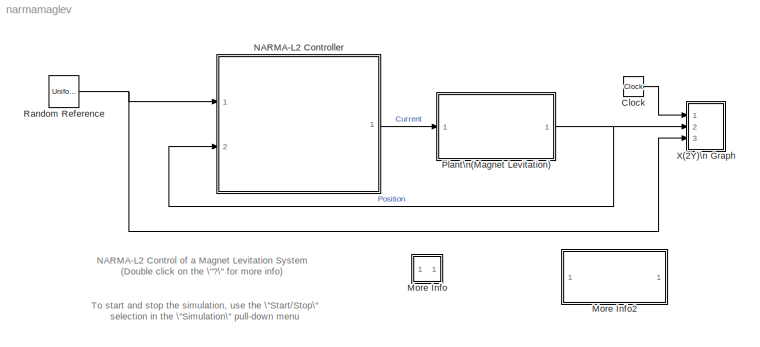
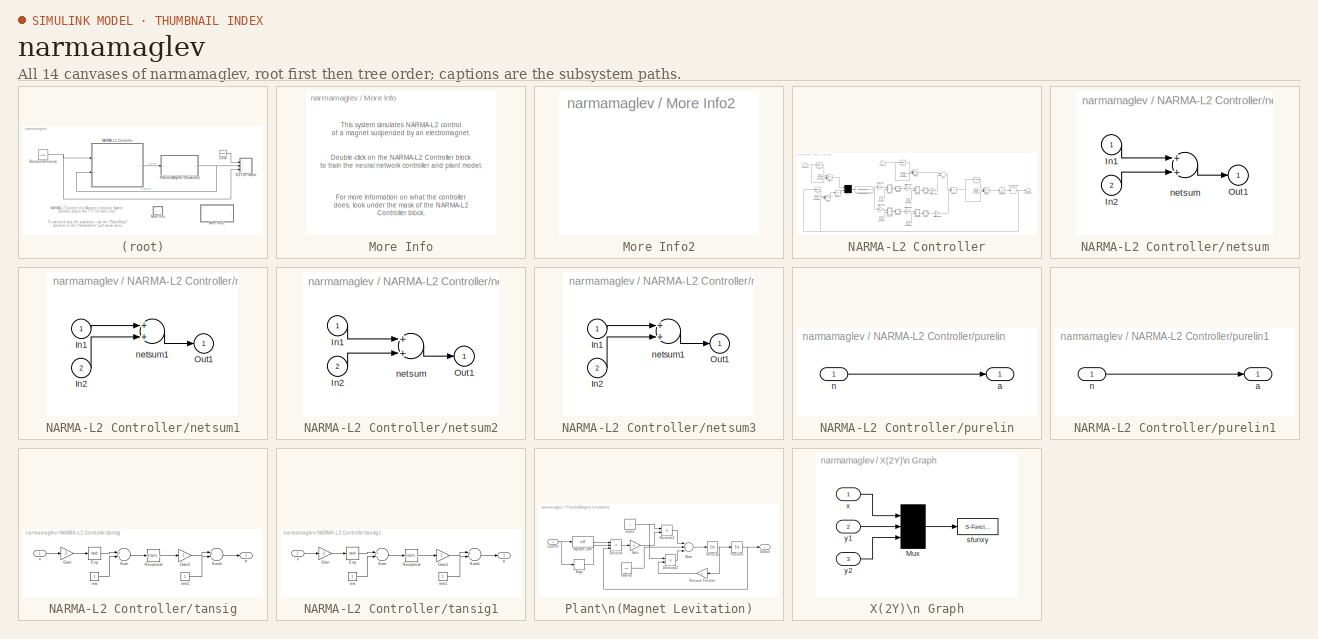
[diagram: thumbnail index - all 14 canvases of the model, root first then tree order]
MODEL narmamaglev
KIND model
CONFIG AbsTol = 1e-6
CONFIG FixedStep = auto
CONFIG MaxStep = auto
CONFIG MinStep = auto
CONFIG RelTol = 1e-3
CONFIG Solver = ode45
CONFIG SolverMode = SingleTasking
CONFIG StartTime = 0.0
CONFIG StopTime = 30
BLOCK [Clock] Clock
  Decimation = 10
BLOCK [SubSystem] More Info
  MaskDisplay = disp('?')
  MaskIconFrame = on
  MaskIconOpaque = on
  MaskIconRotate = none
  MaskIconUnits = autoscale
  Ports = []
  TreatAsAtomicUnit = off
BLOCK [SubSystem] More Info2
  MaskDisplay = disp('Double click\\nhere for\\nSimulink Help')
  MaskIconFrame = on
  MaskIconOpaque = on
  MaskIconRotate = none
  MaskIconUnits = autoscale
  OpenFcn = simcad(bdroot)
  Ports = []
  TreatAsAtomicUnit = off
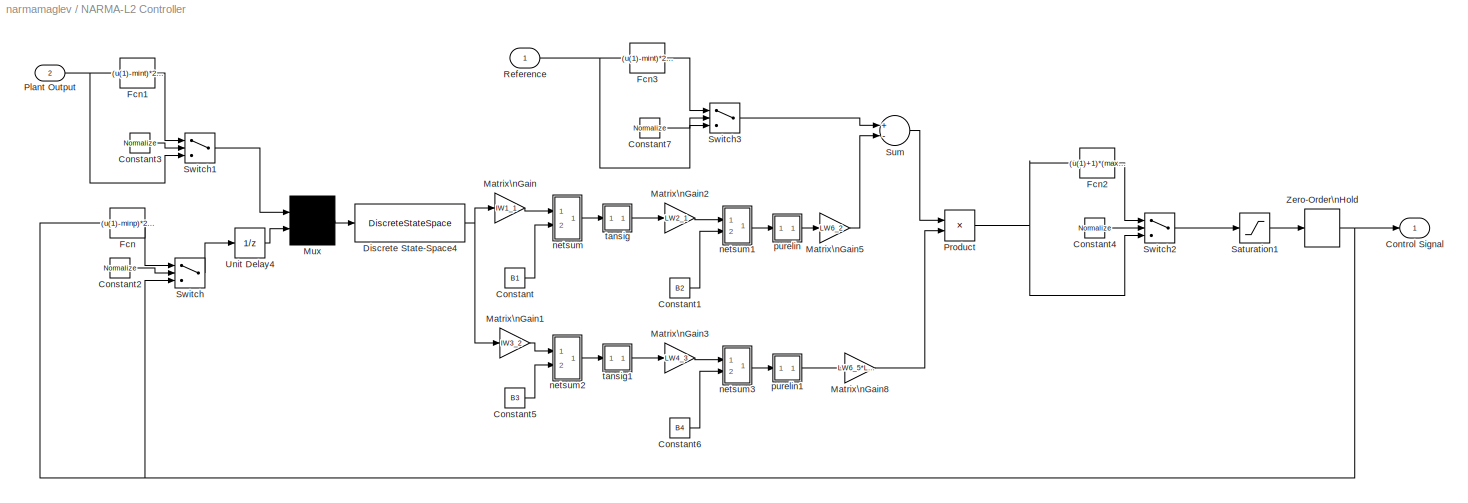
BLOCK [SubSystem] NARMA-L2 Controller
  MaskCallbackString = ||||||||||||||||||||||||||||||||||
  MaskDescription = NARMA-L2 Controller. You first train a neural network model of the plant to be controlled.  The controller is a rearrangement of the trained plant model.  Double-click the NARMA-L2 Controller block to begin the plant training.
  MaskDisplay = plot([[xl NaN x2]*.9-.075 ], [[yl  NaN y2]*.9-.1 ]);\nplot([[x3 NaN xs1 NaN xs2]*.9-.075 ], [[y3 NaN ys1 NaN ys2]*.9-.1 ]);\nplot([x4 NaN x5]*.9-.075,[y4 NaN y5]*.9-.1);\nplot([x6 NaN ]*.9-.075,[y6 NaN ]*.9-.1);\ntext(x1t,y1t,'Plant');\ntext(x8t,y8t,'Output');\ntext(x2t,y2t,'Reference');\ntext(x3t,y3t,'Control');\ntext(x4t,y4t,'Signal');\ntext(x5t,y5t,'f');\ntext(x6t,y6t,'g');\n
  MaskEnableString = on,on,on,on,on,on,on,on,on,on,on,on,on,on,on,on,on,on,on,on,on,on,on,on,on,on,on,on,on,on,on,on,on,on,on
  MaskIconFrame = on
  MaskIconOpaque = on
  MaskIconRotate = none
  MaskIconUnits = normalized
  MaskInitialization = xl = [0    .4   NaN  .33  .55   .55  .33  .33  NaN .80  .92 .92];\nyl = [.95 .95 NaN  .75  .75   .55  .55  .75  NaN  .95 .95 .65];\nx2 = [0    .43 NaN .45 .45    NaN .92 1.2 NaN .63 .85 .85 .63 .63 ];\ny2 = [.39 .39 NaN  .41 .55   NaN .65 .65 NaN .75 .75  .55  .55  .75];\nx3 = [.45 .45 NaN .42 .45 .48  NaN .33 .4 .33];\ny3 = [.75 .90 NaN .83 .90 .83  NaN  .98 .95 .92];\nx4 = [.75 .75 NaN .72 .75 ....<+524ch>
  MaskPromptString = Sample time|S1|Ni|Nj|sim_file|Training function|Use_Validation|Use_Testing|max_i|min_i|max_i_int|min_i_int|sam_training|epochs|minp|maxp|mint|maxt|Normalize|IW1_1|IW3_2|IW5_3|LW2_1|LW4_3|LW5_4|LW6_5|LW6_2|B1|B2|B3|B4|Limit_output|min_output|max_output|Use_Previous_Weights
  MaskStyleString = edit,edit,edit,edit,edit,popup(trainbfg|trainbr |traincgb|traincgf|traincgp|traingd|traingdm|traingda|traingdx|trainlm |trainoss|trainrp |trainscg),edit,edit,edit,edit,edit,edit,edit,edit,edit,edit,edit,edit,edit,edit,edit,edit,edit,edit,edit,edit,edit,edit,edit,edit,edit,edit,edit,edit,edit
  MaskToolTipString = on,on,on,on,on,on,on,on,on,on,on,on,on,on,on,on,on,on,on,on,on,on,on,on,on,on,on,on,on,on,on,on,on,on,on
  MaskTunableValueString = on,on,on,on,on,on,on,on,on,on,on,on,on,on,on,on,on,on,on,on,on,on,on,on,on,on,on,on,on,on,on,on,on,on,on
  MaskType = NARMA-L2 Controller
  MaskValueString = 0.01|9|3|2|ballrepel0|trainlm |1|1|4|-1|1|0.1|10000|100|-0.98589809892637514|3.9504698574991721|-0.0016503994509919615|5.8483552223055346|1|[2.8589406503354526 3.8571763260787164 2.4456184377322217 0.8666607644547214;0.84908220491155217 -0.74479667271080674 0.17438611819566038 -0.054598878873029347;-0.62709936825321444 -1.3691145688669635 -1.0354349321363878 -2.2482593652050578;-0.6111287201227411...<+2042ch>
  MaskVarAliasString = ,,,,,,,,,,,,,,,,,,,,,,,,,,,,,,,,,,
  MaskVariables = Ts=@1;S1=@2;Ni=@3;Nj=@4;sim_file=&5;trainfun=@6;Use_validation=@7;Use_Testing=@8;max_i=@9;min_i=@10;max_i_int=@11;min_i_int=@12;sam_training=@13;epochs=@14;minp=@15;maxp=@16;mint=@17;maxt=@18;Normalize=@19;IW1_1=@20;IW3_2=@21;IW5_3=@22;LW2_1=@23;LW4_3=@24;LW5_4=@25;LW6_5=@26;LW6_2=@27;B1=@28;B2=@29;B3=@30;B4=@31;Limit_output=@32;min_output=@33;max_output=@34;Use_Previous_Weights=@35;
  MaskVisibilityString = on,on,on,on,on,on,on,on,on,on,on,on,on,on,on,on,on,on,on,on,on,on,on,on,on,on,on,on,on,on,on,on,on,on,on
  OpenFcn = nncontrolutil('nnident','',gcbh,gcb,'narma_l2');
  Ports = [2, 1]
  TreatAsAtomicUnit = off
BLOCK [Constant] NARMA-L2 Controller/Constant
  Value = B1
BLOCK [Constant] NARMA-L2 Controller/Constant1
  Value = B2
BLOCK [Constant] NARMA-L2 Controller/Constant2
  Value = Normalize
BLOCK [Constant] NARMA-L2 Controller/Constant3
  Value = Normalize
BLOCK [Constant] NARMA-L2 Controller/Constant4
  Value = Normalize
BLOCK [Constant] NARMA-L2 Controller/Constant5
  Value = B3
BLOCK [Constant] NARMA-L2 Controller/Constant6
  Value = B4
BLOCK [Constant] NARMA-L2 Controller/Constant7
  Value = Normalize
BLOCK [Outport] NARMA-L2 Controller/Control Signal
BLOCK [DiscreteStateSpace] NARMA-L2 Controller/Discrete State-Space4
  A = blkdiag([zeros(1,Nj-1);eye(Nj-2,Nj-2) zeros(Nj-2,1)],[zeros(1,Ni-1);eye(Ni-2,Ni-2) zeros(Ni-2,1)])
  B = blkdiag(eye(Nj-1,1),eye(Ni-1,1))
  C = blkdiag([zeros(1,Nj-1);eye(Nj-1,Nj-1)],[zeros(eye(double(Ni>1)),Ni-1);eye(Ni-2,Ni-1)])
  D = blkdiag([1;zeros(Nj-1,1)],[eye(double(Ni>1));zeros(Ni-2,1)])
  SampleTime = Ts
BLOCK [Fcn] NARMA-L2 Controller/Fcn
  Expr = (u(1)-minp)*2/(maxp-minp) - 1
BLOCK [Fcn] NARMA-L2 Controller/Fcn1
  Expr = (u(1)-mint)*2/(maxt-mint) - 1
BLOCK [Fcn] NARMA-L2 Controller/Fcn2
  Expr = (u(1)+1)*(maxp-minp)/2 + minp
BLOCK [Fcn] NARMA-L2 Controller/Fcn3
  Expr = (u(1)-mint)*2/(maxt-mint) - 1
BLOCK [Gain] NARMA-L2 Controller/Matrix\nGain
  Gain = IW1_1
  Multiplication = Matrix(K*u)
BLOCK [Gain] NARMA-L2 Controller/Matrix\nGain1
  Gain = IW3_2
  Multiplication = Matrix(K*u)
BLOCK [Gain] NARMA-L2 Controller/Matrix\nGain2
  Gain = LW2_1
  Multiplication = Matrix(K*u)
BLOCK [Gain] NARMA-L2 Controller/Matrix\nGain3
  Gain = LW4_3
  Multiplication = Matrix(K*u)
BLOCK [Gain] NARMA-L2 Controller/Matrix\nGain5
  Gain = LW6_2
  Multiplication = Matrix(K*u)
BLOCK [Gain] NARMA-L2 Controller/Matrix\nGain8
  Gain = LW6_5*LW5_4*IW5_3
  Multiplication = Matrix(K*u)
BLOCK [Mux] NARMA-L2 Controller/Mux
  DisplayOption = signals
  Inputs = 2
  Ports = [2, 1]
BLOCK [Inport] NARMA-L2 Controller/Plant Output
  Port = 2
BLOCK [Product] NARMA-L2 Controller/Product
  Inputs = */
  Ports = [2, 1]
BLOCK [Inport] NARMA-L2 Controller/Reference
BLOCK [Saturate] NARMA-L2 Controller/Saturation1
  LowerLimit = min_i
  UpperLimit = max_i
  ZeroCross = off
BLOCK [Sum] NARMA-L2 Controller/Sum
  Inputs = +-
  Ports = [2, 1]
BLOCK [Switch] NARMA-L2 Controller/Switch
  Threshold = 0.5
  ZeroCross = off
BLOCK [Switch] NARMA-L2 Controller/Switch1
  Threshold = 0.5
  ZeroCross = off
BLOCK [Switch] NARMA-L2 Controller/Switch2
  Threshold = 0.5
  ZeroCross = off
BLOCK [Switch] NARMA-L2 Controller/Switch3
  Threshold = 0.5
  ZeroCross = off
BLOCK [UnitDelay] NARMA-L2 Controller/Unit Delay4
  SampleTime = Ts
BLOCK [ZeroOrderHold] NARMA-L2 Controller/Zero-Order\nHold
  SampleTime = Ts
BLOCK [SubSystem] NARMA-L2 Controller/netsum
  MaskDisplay = disp('+')
  MaskIconFrame = on
  MaskIconOpaque = on
  MaskIconRotate = none
  MaskIconUnits = autoscale
  Ports = [2, 1]
  TreatAsAtomicUnit = off
BLOCK [Inport] NARMA-L2 Controller/netsum/In1
BLOCK [Inport] NARMA-L2 Controller/netsum/In2
  Port = 2
BLOCK [Outport] NARMA-L2 Controller/netsum/Out1
BLOCK [Sum] NARMA-L2 Controller/netsum/netsum
  Inputs = 2
  Ports = [2, 1]
BLOCK [SubSystem] NARMA-L2 Controller/netsum1
  MaskDisplay = disp('+')
  MaskIconFrame = on
  MaskIconOpaque = on
  MaskIconRotate = none
  MaskIconUnits = autoscale
  Ports = [2, 1]
  TreatAsAtomicUnit = off
BLOCK [Inport] NARMA-L2 Controller/netsum1/In1
BLOCK [Inport] NARMA-L2 Controller/netsum1/In2
  Port = 2
BLOCK [Outport] NARMA-L2 Controller/netsum1/Out1
BLOCK [Sum] NARMA-L2 Controller/netsum1/netsum1
  Inputs = 2
  Ports = [2, 1]
BLOCK [SubSystem] NARMA-L2 Controller/netsum2
  MaskDisplay = disp('+')
  MaskIconFrame = on
  MaskIconOpaque = on
  MaskIconRotate = none
  MaskIconUnits = autoscale
  Ports = [2, 1]
  TreatAsAtomicUnit = off
BLOCK [Inport] NARMA-L2 Controller/netsum2/In1
BLOCK [Inport] NARMA-L2 Controller/netsum2/In2
  Port = 2
BLOCK [Outport] NARMA-L2 Controller/netsum2/Out1
BLOCK [Sum] NARMA-L2 Controller/netsum2/netsum
  Inputs = 2
  Ports = [2, 1]
BLOCK [SubSystem] NARMA-L2 Controller/netsum3
  MaskDisplay = disp('+')
  MaskIconFrame = on
  MaskIconOpaque = on
  MaskIconRotate = none
  MaskIconUnits = autoscale
  Ports = [2, 1]
  TreatAsAtomicUnit = off
BLOCK [Inport] NARMA-L2 Controller/netsum3/In1
BLOCK [Inport] NARMA-L2 Controller/netsum3/In2
  Port = 2
BLOCK [Outport] NARMA-L2 Controller/netsum3/Out1
BLOCK [Sum] NARMA-L2 Controller/netsum3/netsum1
  Inputs = 2
  Ports = [2, 1]
BLOCK [SubSystem] NARMA-L2 Controller/purelin
  MaskDisplay = plot([-1 1],[0 0],[-1 1],[-1 1])
  MaskIconFrame = on
  MaskIconOpaque = on
  MaskIconRotate = none
  MaskIconUnits = autoscale
  Ports = [1, 1]
  TreatAsAtomicUnit = off
BLOCK [Outport] NARMA-L2 Controller/purelin/a
BLOCK [Inport] NARMA-L2 Controller/purelin/n
BLOCK [SubSystem] NARMA-L2 Controller/purelin1
  MaskDisplay = plot([-1 1],[0 0],[-1 1],[-1 1])
  MaskIconFrame = on
  MaskIconOpaque = on
  MaskIconRotate = none
  MaskIconUnits = autoscale
  Ports = [1, 1]
  TreatAsAtomicUnit = off
BLOCK [Outport] NARMA-L2 Controller/purelin1/a
BLOCK [Inport] NARMA-L2 Controller/purelin1/n
BLOCK [SubSystem] NARMA-L2 Controller/tansig
  MaskDisplay = plot([-1 1],[0 0],[-1 -.9 -.8 -.7 -.6 -.5 -.4 -.3 -.2 -.1 0 .1 .2 .3 .4 .5 .6 .7 .8 .9 1],2./(1+exp(-8*[-1 -.9 -.8 -.7 -.6 -.5 -.4 -.3 -.2 -.1 0 .1 .2 .3 .4 .5 .6 .7 .8 .9 1]))-1)
  MaskIconFrame = on
  MaskIconOpaque = on
  MaskIconRotate = none
  MaskIconUnits = autoscale
  Ports = [1, 1]
  TreatAsAtomicUnit = off
BLOCK [Math] NARMA-L2 Controller/tansig/Exp
  MaskIconFrame = on
  MaskIconOpaque = on
  MaskIconRotate = none
  MaskIconUnits = autoscale
  Ports = [1, 1]
BLOCK [Gain] NARMA-L2 Controller/tansig/Gain
  Gain = -2
BLOCK [Gain] NARMA-L2 Controller/tansig/Gain1
  Gain = 2
BLOCK [Math] NARMA-L2 Controller/tansig/Reciprocal
  MaskIconFrame = on
  MaskIconOpaque = on
  MaskIconRotate = none
  MaskIconUnits = autoscale
  Operator = reciprocal
  Ports = [1, 1]
BLOCK [Sum] NARMA-L2 Controller/tansig/Sum
  Ports = [2, 1]
BLOCK [Sum] NARMA-L2 Controller/tansig/Sum1
  Inputs = +-
  Ports = [2, 1]
BLOCK [Outport] NARMA-L2 Controller/tansig/a
BLOCK [Inport] NARMA-L2 Controller/tansig/n
BLOCK [Constant] NARMA-L2 Controller/tansig/one
BLOCK [Constant] NARMA-L2 Controller/tansig/one1
BLOCK [SubSystem] NARMA-L2 Controller/tansig1
  MaskDisplay = plot([-1 1],[0 0],[-1 -.9 -.8 -.7 -.6 -.5 -.4 -.3 -.2 -.1 0 .1 .2 .3 .4 .5 .6 .7 .8 .9 1],2./(1+exp(-8*[-1 -.9 -.8 -.7 -.6 -.5 -.4 -.3 -.2 -.1 0 .1 .2 .3 .4 .5 .6 .7 .8 .9 1]))-1)
  MaskIconFrame = on
  MaskIconOpaque = on
  MaskIconRotate = none
  MaskIconUnits = autoscale
  Ports = [1, 1]
  TreatAsAtomicUnit = off
BLOCK [Math] NARMA-L2 Controller/tansig1/Exp
  MaskIconFrame = on
  MaskIconOpaque = on
  MaskIconRotate = none
  MaskIconUnits = autoscale
  Ports = [1, 1]
BLOCK [Gain] NARMA-L2 Controller/tansig1/Gain
  Gain = -2
BLOCK [Gain] NARMA-L2 Controller/tansig1/Gain1
  Gain = 2
BLOCK [Math] NARMA-L2 Controller/tansig1/Reciprocal
  MaskIconFrame = on
  MaskIconOpaque = on
  MaskIconRotate = none
  MaskIconUnits = autoscale
  Operator = reciprocal
  Ports = [1, 1]
BLOCK [Sum] NARMA-L2 Controller/tansig1/Sum
  Ports = [2, 1]
BLOCK [Sum] NARMA-L2 Controller/tansig1/Sum1
  Inputs = +-
  Ports = [2, 1]
BLOCK [Outport] NARMA-L2 Controller/tansig1/a
BLOCK [Inport] NARMA-L2 Controller/tansig1/n
BLOCK [Constant] NARMA-L2 Controller/tansig1/one
BLOCK [Constant] NARMA-L2 Controller/tansig1/one1
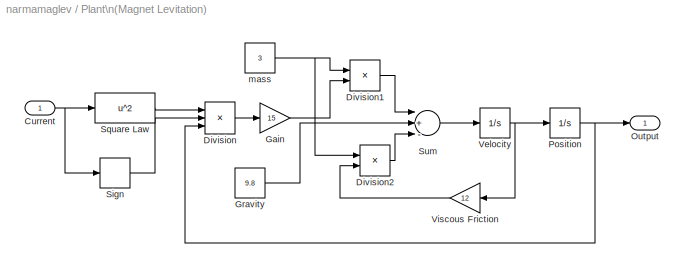
BLOCK [SubSystem] Plant\n(Magnet Levitation)
  MaskDisplay = plot([-10],[0],[10],[5]);\nplot([x1 NaN x2],[y1 NaN y2]);\ntext(x1t,y1t,'N')\ntext(x2t,y2t,'S')
  MaskIconFrame = on
  MaskIconOpaque = on
  MaskIconRotate = none
  MaskIconUnits = autoscale
  MaskInitialization = x1=[-2 -2 2 2 -2 NaN -2 -2 2 2 -2];\ny1=[5 4 4 5 5 NaN 2 0 0 2 2];\nx2=[-2 -2 2 2 -2 NaN -2   2  NaN -2 2 NaN 2    4    NaN 2  4];\ny2=[4  3  3 4  4 NaN 1.5 1  NaN 1 .5 NaN 1.5 1.5 NaN .5 .5];\nx1t = -.5 ; y1t = 4.4;\nx2t = -.5; y2t = 3.4;\n
  Ports = [1, 1]
  TreatAsAtomicUnit = off
BLOCK [Inport] Plant\n(Magnet Levitation)/Current
BLOCK [Product] Plant\n(Magnet Levitation)/Division
  Inputs = **/
  Ports = [3, 1]
BLOCK [Product] Plant\n(Magnet Levitation)/Division1
  Inputs = /*
  Ports = [2, 1]
BLOCK [Product] Plant\n(Magnet Levitation)/Division2
  Inputs = /*
  Ports = [2, 1]
BLOCK [Gain] Plant\n(Magnet Levitation)/Gain
  Gain = 15
BLOCK [Constant] Plant\n(Magnet Levitation)/Gravity
  Value = 9.8
BLOCK [Outport] Plant\n(Magnet Levitation)/Output
BLOCK [Integrator] Plant\n(Magnet Levitation)/Position
  InitialCondition = .5
  Ports = [1, 1]
  ZeroCross = off
BLOCK [Signum] Plant\n(Magnet Levitation)/Sign
  ZeroCross = off
BLOCK [Fcn] Plant\n(Magnet Levitation)/Square Law
  Expr = u^2
BLOCK [Sum] Plant\n(Magnet Levitation)/Sum
  Inputs = |+--
  Ports = [3, 1]
BLOCK [Integrator] Plant\n(Magnet Levitation)/Velocity
  Ports = [1, 1]
  ZeroCross = off
BLOCK [Gain] Plant\n(Magnet Levitation)/Viscous Friction
  Gain = 12
BLOCK [Constant] Plant\n(Magnet Levitation)/mass
  Value = 3
BLOCK [UniformRandomNumber] Random Reference
  Maximum = 4
  Minimum = 0.5
  SampleTime = 5
  Seed = round(now)
BLOCK [SubSystem] X(2Y)\n Graph
  CopyFcn = sfunxy2([],[],[],'CopyBlock')
  DeleteFcn = sfunxy2([],[],[],'DeleteBlock')
  LoadFcn = sfunxy2([],[],[],'LoadBlock')
  MaskCallbackString = ||||
  MaskDescription = X(2Y) scope using MATLAB graph window.  First input is used as time base.  Enter plotting ranges.
  MaskDisplay = plot([.05 .95 .95 .05 .05],[.45 .45 .95 .95 .45], 0.5+cos(0:0.1:2*pi)*0.3,0.7+sin(0:0.1:2*pi)*0.2)
  MaskEnableString = on,on,on,on,on
  MaskHelp = This block can be used to explore limit cycles. Look at the m-file sfunxy.m to see how it works.
  MaskIconFrame = on
  MaskIconOpaque = on
  MaskIconRotate = none
  MaskIconUnits = normalized
  MaskPromptString = x-min:|x-max:|y-min:|y-max:|Sample time:
  MaskSelfModifiable = on
  MaskStyleString = edit,edit,edit,edit,edit
  MaskToolTipString = on,on,on,on,on
  MaskTunableValueString = on,on,on,on,on
  MaskType = X(2Y) scope.
  MaskValueString = 0|5|-1|1|-1
  MaskVarAliasString = ,,,,
  MaskVariables = xmin=@1;xmax=@2;ymin=@3;ymax=@4;st=@5;
  MaskVisibilityString = on,on,on,on,on
  NameChangeFcn = sfunxy2([],[],[],'NameChange')
  Ports = [3]
  StartFcn = sfunxy2([],[],[],'Start')
  StopFcn = sfunxy2([],[],[],'Stop')
  TreatAsAtomicUnit = off
BLOCK [Mux] X(2Y)\n Graph/Mux
  Inputs = 3
  Ports = [3, 1]
BLOCK [S-Function] X(2Y)\n Graph/sfunxy
  FunctionName = sfunxy2
  Parameters = [xmin xmax ymin ymax], st
  Ports = [1]
BLOCK [Inport] X(2Y)\n Graph/x
BLOCK [Inport] X(2Y)\n Graph/y1
  Port = 2
BLOCK [Inport] X(2Y)\n Graph/y2
  Port = 3
ANNOTATION (root): NARMA-L2 Control of a Magnet Levitation System\n(Double click on the \"?\" for more info)
ANNOTATION (root): To start and stop the simulation, use the \"Start/Stop\"\nselection in the \"Simulation\" pull-down menu
ANNOTATION More Info: Double-click on the NARMA-L2 Controller block\nto train the neural network controller and plant model.
ANNOTATION More Info: For more information on what the controller \ndoes, look under the mask of the NARMA-L2 \nController block.
ANNOTATION More Info: This system simulates NARMA-L2 control\nof a magnet suspended by an electromagnet.
LINE Clock:1 -> X(2Y)\n Graph:1
LINE NARMA-L2 Controller/Constant1:1 -> NARMA-L2 Controller/netsum1:2
LINE NARMA-L2 Controller/Constant2:1 -> NARMA-L2 Controller/Switch:2
LINE NARMA-L2 Controller/Constant3:1 -> NARMA-L2 Controller/Switch1:2
LINE NARMA-L2 Controller/Constant4:1 -> NARMA-L2 Controller/Switch2:2
LINE NARMA-L2 Controller/Constant5:1 -> NARMA-L2 Controller/netsum2:2
LINE NARMA-L2 Controller/Constant6:1 -> NARMA-L2 Controller/netsum3:2
LINE NARMA-L2 Controller/Constant7:1 -> NARMA-L2 Controller/Switch3:2
LINE NARMA-L2 Controller/Constant:1 -> NARMA-L2 Controller/netsum:2
NET NARMA-L2 Controller/Discrete State-Space4:1 -> NARMA-L2 Controller/Matrix\nGain1:1, NARMA-L2 Controller/Matrix\nGain:1
LINE NARMA-L2 Controller/Fcn1:1 -> NARMA-L2 Controller/Switch1:1
LINE NARMA-L2 Controller/Fcn2:1 -> NARMA-L2 Controller/Switch2:1
LINE NARMA-L2 Controller/Fcn3:1 -> NARMA-L2 Controller/Switch3:1
LINE NARMA-L2 Controller/Fcn:1 -> NARMA-L2 Controller/Switch:1
LINE NARMA-L2 Controller/Matrix\nGain1:1 -> NARMA-L2 Controller/netsum2:1
LINE NARMA-L2 Controller/Matrix\nGain2:1 -> NARMA-L2 Controller/netsum1:1
LINE NARMA-L2 Controller/Matrix\nGain3:1 -> NARMA-L2 Controller/netsum3:1
LINE NARMA-L2 Controller/Matrix\nGain5:1 -> NARMA-L2 Controller/Sum:2
LINE NARMA-L2 Controller/Matrix\nGain8:1 -> NARMA-L2 Controller/Product:2
LINE NARMA-L2 Controller/Matrix\nGain:1 -> NARMA-L2 Controller/netsum:1
LINE NARMA-L2 Controller/Mux:1 -> NARMA-L2 Controller/Discrete State-Space4:1
NET NARMA-L2 Controller/Plant Output:1 -> NARMA-L2 Controller/Fcn1:1, NARMA-L2 Controller/Switch1:3
NET NARMA-L2 Controller/Product:1 -> NARMA-L2 Controller/Fcn2:1, NARMA-L2 Controller/Switch2:3
NET NARMA-L2 Controller/Reference:1 -> NARMA-L2 Controller/Fcn3:1, NARMA-L2 Controller/Switch3:3
LINE NARMA-L2 Controller/Saturation1:1 -> NARMA-L2 Controller/Zero-Order\nHold:1
LINE NARMA-L2 Controller/Sum:1 -> NARMA-L2 Controller/Product:1
LINE NARMA-L2 Controller/Switch1:1 -> NARMA-L2 Controller/Mux:1
LINE NARMA-L2 Controller/Switch2:1 -> NARMA-L2 Controller/Saturation1:1
LINE NARMA-L2 Controller/Switch3:1 -> NARMA-L2 Controller/Sum:1
LINE NARMA-L2 Controller/Switch:1 -> NARMA-L2 Controller/Unit Delay4:1
LINE NARMA-L2 Controller/Unit Delay4:1 -> NARMA-L2 Controller/Mux:2
NET NARMA-L2 Controller/Zero-Order\nHold:1 -> NARMA-L2 Controller/Control Signal:1, NARMA-L2 Controller/Fcn:1, NARMA-L2 Controller/Switch:3
LINE NARMA-L2 Controller/netsum/In1:1 -> NARMA-L2 Controller/netsum/netsum:1
LINE NARMA-L2 Controller/netsum/In2:1 -> NARMA-L2 Controller/netsum/netsum:2
LINE NARMA-L2 Controller/netsum/netsum:1 -> NARMA-L2 Controller/netsum/Out1:1
LINE NARMA-L2 Controller/netsum1/In1:1 -> NARMA-L2 Controller/netsum1/netsum1:1
LINE NARMA-L2 Controller/netsum1/In2:1 -> NARMA-L2 Controller/netsum1/netsum1:2
LINE NARMA-L2 Controller/netsum1/netsum1:1 -> NARMA-L2 Controller/netsum1/Out1:1
LINE NARMA-L2 Controller/netsum1:1 -> NARMA-L2 Controller/purelin:1
LINE NARMA-L2 Controller/netsum2/In1:1 -> NARMA-L2 Controller/netsum2/netsum:1
LINE NARMA-L2 Controller/netsum2/In2:1 -> NARMA-L2 Controller/netsum2/netsum:2
LINE NARMA-L2 Controller/netsum2/netsum:1 -> NARMA-L2 Controller/netsum2/Out1:1
LINE NARMA-L2 Controller/netsum2:1 -> NARMA-L2 Controller/tansig1:1
LINE NARMA-L2 Controller/netsum3/In1:1 -> NARMA-L2 Controller/netsum3/netsum1:1
LINE NARMA-L2 Controller/netsum3/In2:1 -> NARMA-L2 Controller/netsum3/netsum1:2
LINE NARMA-L2 Controller/netsum3/netsum1:1 -> NARMA-L2 Controller/netsum3/Out1:1
LINE NARMA-L2 Controller/netsum3:1 -> NARMA-L2 Controller/purelin1:1
LINE NARMA-L2 Controller/netsum:1 -> NARMA-L2 Controller/tansig:1
LINE NARMA-L2 Controller/purelin/n:1 -> NARMA-L2 Controller/purelin/a:1
LINE NARMA-L2 Controller/purelin1/n:1 -> NARMA-L2 Controller/purelin1/a:1
LINE NARMA-L2 Controller/purelin1:1 -> NARMA-L2 Controller/Matrix\nGain8:1
LINE NARMA-L2 Controller/purelin:1 -> NARMA-L2 Controller/Matrix\nGain5:1
LINE NARMA-L2 Controller/tansig/Exp:1 -> NARMA-L2 Controller/tansig/Sum:1
LINE NARMA-L2 Controller/tansig/Gain1:1 -> NARMA-L2 Controller/tansig/Sum1:1
LINE NARMA-L2 Controller/tansig/Gain:1 -> NARMA-L2 Controller/tansig/Exp:1
LINE NARMA-L2 Controller/tansig/Reciprocal:1 -> NARMA-L2 Controller/tansig/Gain1:1
LINE NARMA-L2 Controller/tansig/Sum1:1 -> NARMA-L2 Controller/tansig/a:1
LINE NARMA-L2 Controller/tansig/Sum:1 -> NARMA-L2 Controller/tansig/Reciprocal:1
LINE NARMA-L2 Controller/tansig/n:1 -> NARMA-L2 Controller/tansig/Gain:1
LINE NARMA-L2 Controller/tansig/one1:1 -> NARMA-L2 Controller/tansig/Sum1:2
LINE NARMA-L2 Controller/tansig/one:1 -> NARMA-L2 Controller/tansig/Sum:2
LINE NARMA-L2 Controller/tansig1/Exp:1 -> NARMA-L2 Controller/tansig1/Sum:1
LINE NARMA-L2 Controller/tansig1/Gain1:1 -> NARMA-L2 Controller/tansig1/Sum1:1
LINE NARMA-L2 Controller/tansig1/Gain:1 -> NARMA-L2 Controller/tansig1/Exp:1
LINE NARMA-L2 Controller/tansig1/Reciprocal:1 -> NARMA-L2 Controller/tansig1/Gain1:1
LINE NARMA-L2 Controller/tansig1/Sum1:1 -> NARMA-L2 Controller/tansig1/a:1
LINE NARMA-L2 Controller/tansig1/Sum:1 -> NARMA-L2 Controller/tansig1/Reciprocal:1
LINE NARMA-L2 Controller/tansig1/n:1 -> NARMA-L2 Controller/tansig1/Gain:1
LINE NARMA-L2 Controller/tansig1/one1:1 -> NARMA-L2 Controller/tansig1/Sum1:2
LINE NARMA-L2 Controller/tansig1/one:1 -> NARMA-L2 Controller/tansig1/Sum:2
LINE NARMA-L2 Controller/tansig1:1 -> NARMA-L2 Controller/Matrix\nGain3:1
LINE NARMA-L2 Controller/tansig:1 -> NARMA-L2 Controller/Matrix\nGain2:1
LINE NARMA-L2 Controller:1 -> Plant\n(Magnet Levitation):1
NET Plant\n(Magnet Levitation)/Current:1 -> Plant\n(Magnet Levitation)/Sign:1, Plant\n(Magnet Levitation)/Square Law:1
LINE Plant\n(Magnet Levitation)/Division1:1 -> Plant\n(Magnet Levitation)/Sum:1
LINE Plant\n(Magnet Levitation)/Division2:1 -> Plant\n(Magnet Levitation)/Sum:3
LINE Plant\n(Magnet Levitation)/Division:1 -> Plant\n(Magnet Levitation)/Gain:1
LINE Plant\n(Magnet Levitation)/Gain:1 -> Plant\n(Magnet Levitation)/Division1:2
LINE Plant\n(Magnet Levitation)/Gravity:1 -> Plant\n(Magnet Levitation)/Sum:2
NET Plant\n(Magnet Levitation)/Position:1 -> Plant\n(Magnet Levitation)/Division:3, Plant\n(Magnet Levitation)/Output:1
LINE Plant\n(Magnet Levitation)/Sign:1 -> Plant\n(Magnet Levitation)/Division:2
LINE Plant\n(Magnet Levitation)/Square Law:1 -> Plant\n(Magnet Levitation)/Division:1
LINE Plant\n(Magnet Levitation)/Sum:1 -> Plant\n(Magnet Levitation)/Velocity:1
NET Plant\n(Magnet Levitation)/Velocity:1 -> Plant\n(Magnet Levitation)/Position:1, Plant\n(Magnet Levitation)/Viscous Friction:1
LINE Plant\n(Magnet Levitation)/Viscous Friction:1 -> Plant\n(Magnet Levitation)/Division2:2
NET Plant\n(Magnet Levitation)/mass:1 -> Plant\n(Magnet Levitation)/Division1:1, Plant\n(Magnet Levitation)/Division2:1
NET Plant\n(Magnet Levitation):1 -> NARMA-L2 Controller:2, X(2Y)\n Graph:2
NET Random Reference:1 -> NARMA-L2 Controller:1, X(2Y)\n Graph:3
LINE X(2Y)\n Graph/Mux:1 -> X(2Y)\n Graph/sfunxy:1
LINE X(2Y)\n Graph/x:1 -> X(2Y)\n Graph/Mux:1
LINE X(2Y)\n Graph/y1:1 -> X(2Y)\n Graph/Mux:2
LINE X(2Y)\n Graph/y2:1 -> X(2Y)\n Graph/Mux:3
note: NET lines group one-source signal fan-out (src -> all destinations, sorted); 1:1 wires keep LINE
